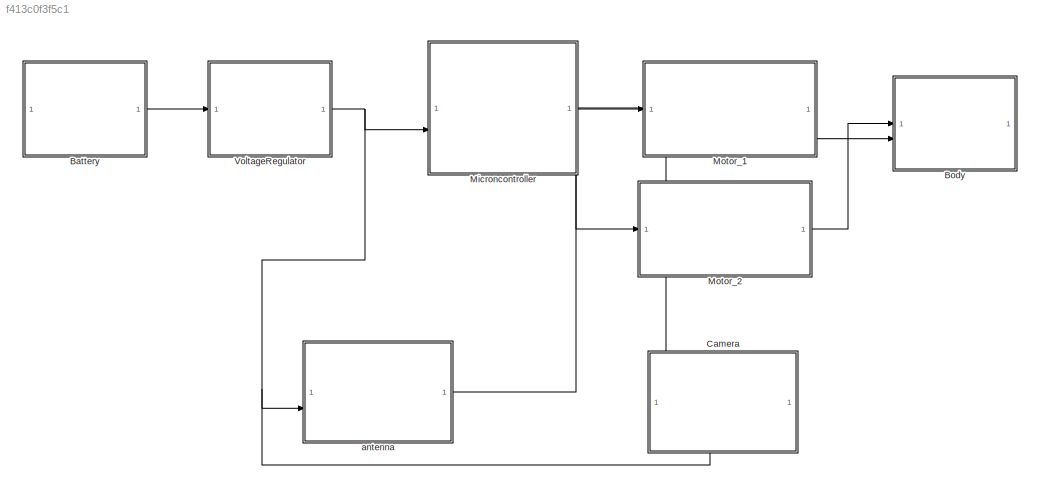
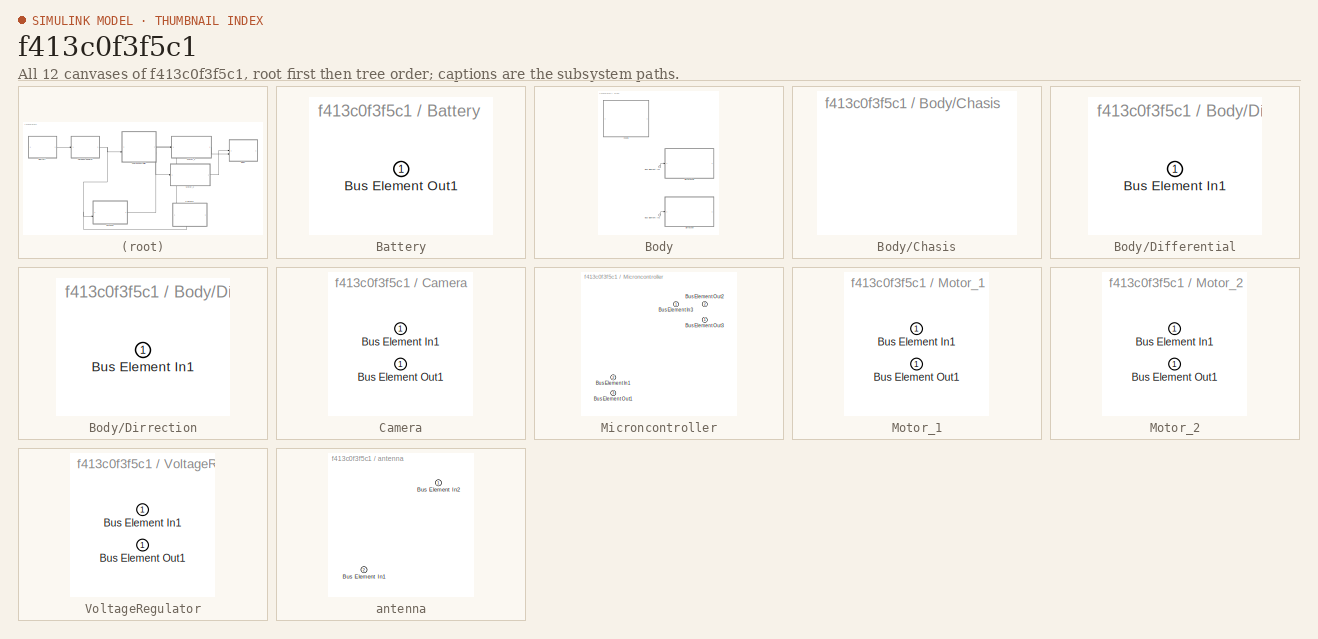
[diagram: thumbnail index - all 12 canvases of the model, root first then tree order]
MODEL slx_f413c0f3f5c1
KIND model
CONFIG AbsTol = auto
CONFIG EnableMultiTasking = off
CONFIG FixedStep = auto
CONFIG MaxStep = auto
CONFIG MinStep = auto
CONFIG RelTol = 1e-3
CONFIG SampleTimeConstraint = Unconstrained
CONFIG SolverName = VariableStepAuto
CONFIG StartTime = 0.0
CONFIG StopTime = 10.0
BLOCK [SubSystem] Battery
  PortSchema = {"entries":[{"content":{"headerSize":26,"margin":15,"minimumSpacing":25,"sides":[{"content":{},"type":"ConnectorPlacement.EquallySpacedRectSide","uuid":"a4c63610-ce53-4263-bc32-11f7e141828d"},{"content":{"connectorIds":["Out1"],"side":"RIGHT"},"type":"ConnectorPlacement.EquallySpacedRectSide","uuid":"7388023e-6661-4314-a5ba-fe6a68600945"},{"content":{"side":"TOP"},"type":"ConnectorPlacement.Equall...<+248ch>
BLOCK [Outport] Battery/Bus Element Out1
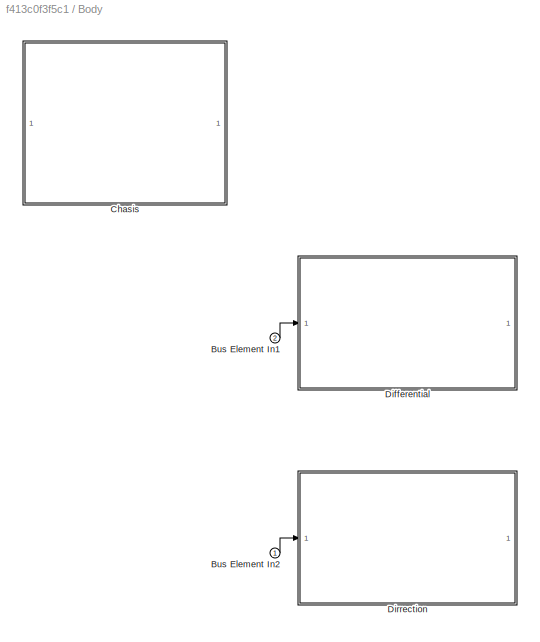
BLOCK [SubSystem] Body
  PortSchema = {"entries":[{"content":{"headerSize":26,"margin":15,"minimumSpacing":25,"sides":[{"content":{"connectorIds":["In2","In1"]},"type":"ConnectorPlacement.EquallySpacedRectSide","uuid":"a4c63610-ce53-4263-bc32-11f7e141828d"},{"content":{"side":"RIGHT"},"type":"ConnectorPlacement.EquallySpacedRectSide","uuid":"7388023e-6661-4314-a5ba-fe6a68600945"},{"content":{"side":"TOP"},"type":"ConnectorPlacement.Eq...<+378ch>
BLOCK [Inport] Body/Bus Element In1
  Port = 2
BLOCK [Inport] Body/Bus Element In2
BLOCK [SubSystem] Body/Chasis
  PortSchema = {"entries":[{"content":{"headerSize":26,"margin":15,"minimumSpacing":25,"sides":[{"content":{},"type":"ConnectorPlacement.EquallySpacedRectSide","uuid":"a4c63610-ce53-4263-bc32-11f7e141828d"},{"content":{"side":"RIGHT"},"type":"ConnectorPlacement.EquallySpacedRectSide","uuid":"7388023e-6661-4314-a5ba-fe6a68600945"},{"content":{"side":"TOP"},"type":"ConnectorPlacement.EquallySpacedRectSide","uuid":...<+224ch>
BLOCK [SubSystem] Body/Differential
  PortSchema = {"entries":[{"content":{"headerSize":26,"margin":15,"minimumSpacing":25,"sides":[{"content":{"connectorIds":["In1"]},"type":"ConnectorPlacement.EquallySpacedRectSide","uuid":"a4c63610-ce53-4263-bc32-11f7e141828d"},{"content":{"side":"RIGHT"},"type":"ConnectorPlacement.EquallySpacedRectSide","uuid":"7388023e-6661-4314-a5ba-fe6a68600945"},{"content":{"side":"TOP"},"type":"ConnectorPlacement.EquallyS...<+246ch>
BLOCK [Inport] Body/Differential/Bus Element In1
BLOCK [SubSystem] Body/Dirrection
  PortSchema = {"entries":[{"content":{"headerSize":26,"margin":15,"minimumSpacing":25,"sides":[{"content":{"connectorIds":["In1"]},"type":"ConnectorPlacement.EquallySpacedRectSide","uuid":"a4c63610-ce53-4263-bc32-11f7e141828d"},{"content":{"side":"RIGHT"},"type":"ConnectorPlacement.EquallySpacedRectSide","uuid":"7388023e-6661-4314-a5ba-fe6a68600945"},{"content":{"side":"TOP"},"type":"ConnectorPlacement.EquallyS...<+246ch>
BLOCK [Inport] Body/Dirrection/Bus Element In1
BLOCK [SubSystem] Camera
  PortSchema = {"entries":[{"content":{"headerSize":26,"margin":15,"minimumSpacing":25,"sides":[{"content":{"connectorIds":["Out1"]},"type":"ConnectorPlacement.EquallySpacedRectSide","uuid":"a4c63610-ce53-4263-bc32-11f7e141828d"},{"content":{"side":"RIGHT"},"type":"ConnectorPlacement.EquallySpacedRectSide","uuid":"7388023e-6661-4314-a5ba-fe6a68600945"},{"content":{"side":"TOP"},"type":"ConnectorPlacement.Equally...<+396ch>
BLOCK [Inport] Camera/Bus Element In1
BLOCK [Outport] Camera/Bus Element Out1
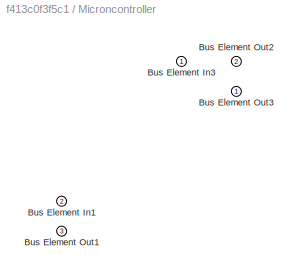
BLOCK [SubSystem] Microncontroller
  PortSchema = {"entries":[{"content":{"headerSize":26,"margin":15,"minimumSpacing":25,"sides":[{"content":{"connectorIds":["In2"]},"type":"ConnectorPlacement.EquallySpacedRectSide","uuid":"a4c63610-ce53-4263-bc32-11f7e141828d"},{"content":{"connectorIds":["Out3"],"side":"RIGHT"},"type":"ConnectorPlacement.EquallySpacedRectSide","uuid":"7388023e-6661-4314-a5ba-fe6a68600945"},{"content":{"side":"TOP"},"type":"Con...<+433ch>
BLOCK [Inport] Microncontroller/Bus Element In1
  Port = 2
BLOCK [Inport] Microncontroller/Bus Element In3
BLOCK [Outport] Microncontroller/Bus Element Out1
  Port = 3
BLOCK [Outport] Microncontroller/Bus Element Out2
  Port = 2
BLOCK [Outport] Microncontroller/Bus Element Out3
BLOCK [SubSystem] Motor_1
  PortSchema = {"entries":[{"content":{"headerSize":26,"margin":15,"minimumSpacing":25,"sides":[{"content":{"connectorIds":["In1"]},"type":"ConnectorPlacement.EquallySpacedRectSide","uuid":"a4c63610-ce53-4263-bc32-11f7e141828d"},{"content":{"connectorIds":["Out1"],"side":"RIGHT"},"type":"ConnectorPlacement.EquallySpacedRectSide","uuid":"7388023e-6661-4314-a5ba-fe6a68600945"},{"content":{"side":"TOP"},"type":"Con...<+270ch>  <repeated x3 — deduplicated; at blocks: Motor_1, Motor_2, VoltageRegulator>
BLOCK [Inport] Motor_1/Bus Element In1
BLOCK [Outport] Motor_1/Bus Element Out1
BLOCK [SubSystem] Motor_2
BLOCK [Inport] Motor_2/Bus Element In1
BLOCK [Outport] Motor_2/Bus Element Out1
BLOCK [SubSystem] VoltageRegulator
BLOCK [Inport] VoltageRegulator/Bus Element In1
BLOCK [Outport] VoltageRegulator/Bus Element Out1
BLOCK [SubSystem] antenna
  PortSchema = {"entries":[{"content":{"headerSize":26,"margin":15,"minimumSpacing":25,"sides":[{"content":{"connectorIds":["In2"]},"type":"ConnectorPlacement.EquallySpacedRectSide","uuid":"a4c63610-ce53-4263-bc32-11f7e141828d"},{"content":{"connectorIds":["In1"],"side":"RIGHT"},"type":"ConnectorPlacement.EquallySpacedRectSide","uuid":"7388023e-6661-4314-a5ba-fe6a68600945"},{"content":{"side":"TOP"},"type":"Conn...<+269ch>
BLOCK [Inport] antenna/Bus Element In1
  Port = 2
BLOCK [Inport] antenna/Bus Element In2
LINE Battery:1 -> VoltageRegulator:1
LINE Body/Bus Element In1:1 -> Body/Differential:1
LINE Body/Bus Element In2:1 -> Body/Dirrection:1
LINE Camera:1 -> Microncontroller:1
LINE Microncontroller:1 -> antenna:1
LINE Microncontroller:2 -> Motor_2:1
LINE Microncontroller:3 -> Motor_1:1
LINE Motor_1:1 -> Body:2
LINE Motor_2:1 -> Body:1
NET VoltageRegulator:1 -> Camera:1, Microncontroller:2, antenna:2
note: NET lines group one-source signal fan-out (src -> all destinations, sorted); 1:1 wires keep LINE
